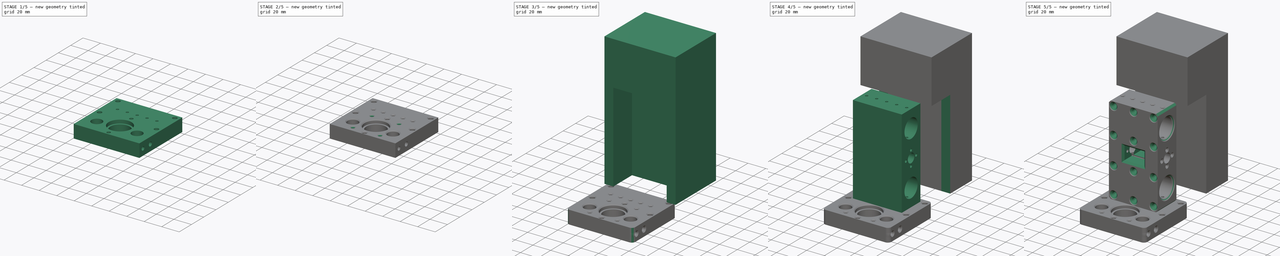
[diagram: build sequence overview — one tinted view per stage of 5, left to right]
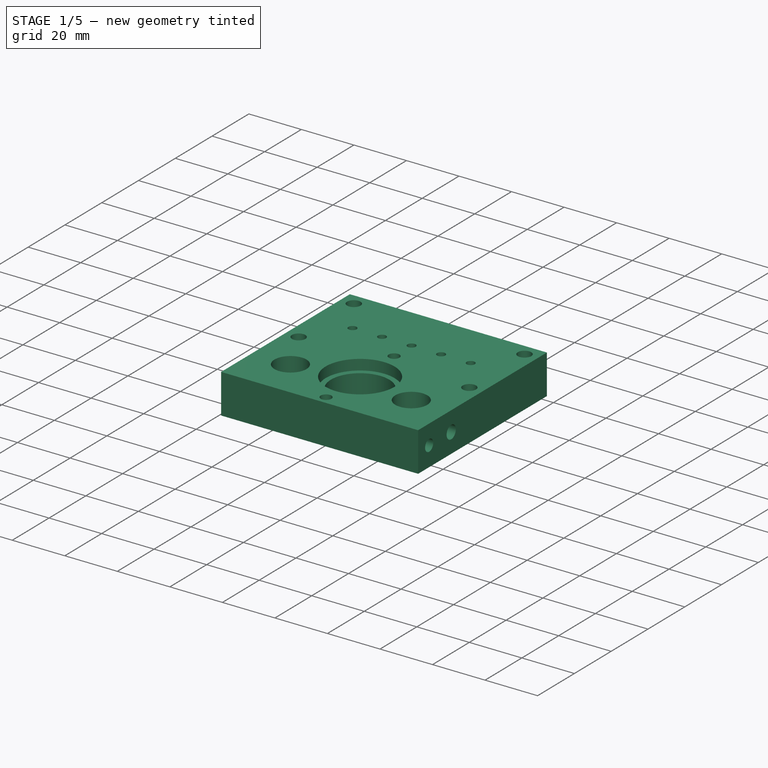
[diagram: stage 1 of 5 — iso view after this stage's code; geometry added in this stage tinted green]
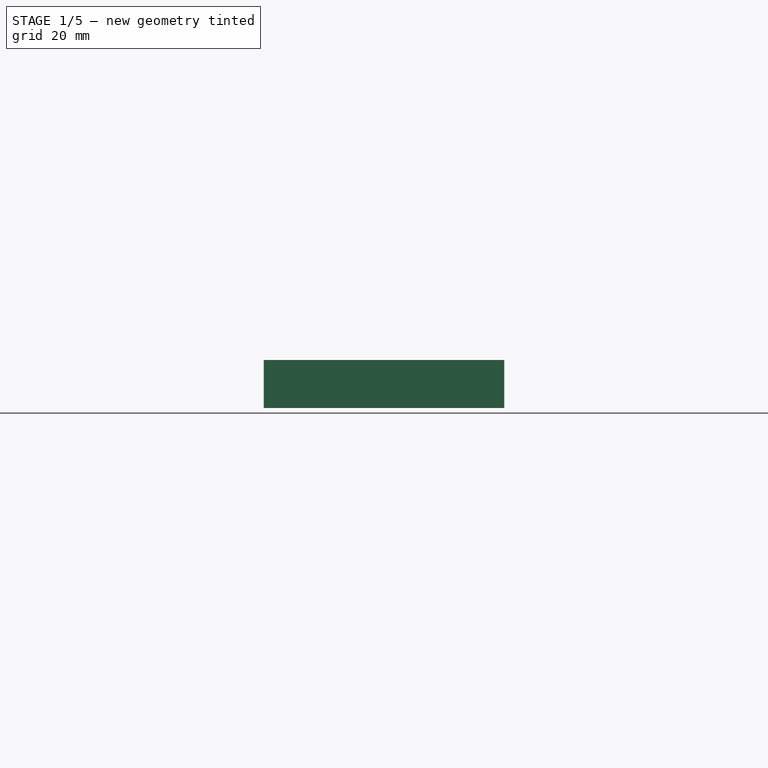
[diagram: stage 1 of 5 — front view after this stage's code; geometry added in this stage tinted green]
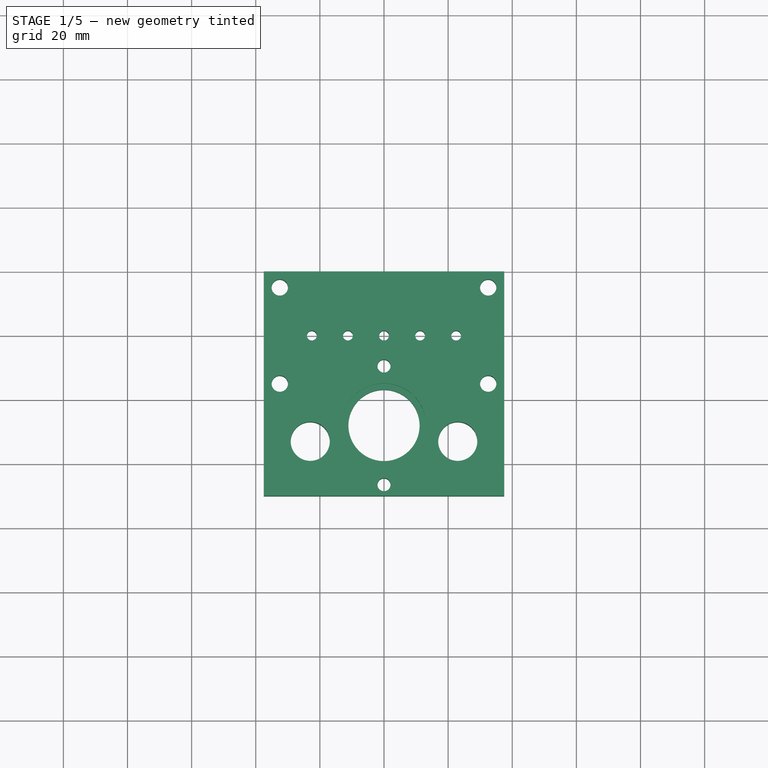
[diagram: stage 1 of 5 — top view after this stage's code; geometry added in this stage tinted green]
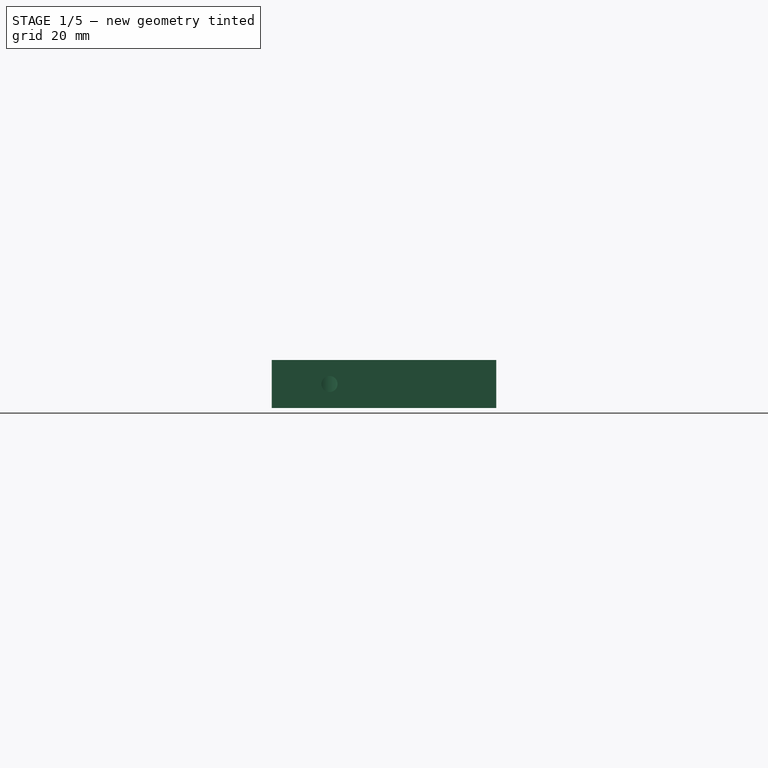
[diagram: stage 1 of 5 — right view after this stage's code; geometry added in this stage tinted green]
FCSTD DOCUMENT  (FreeCAD 0.19R)
Label: x_carriage
License: All rights reserved
LicenseURL: http://en.wikipedia.org/wiki/All_rights_reserved
objects: Sketcher::SketchObject×12, PartDesign::Pocket×8, PartDesign::Chamfer×6, PartDesign::Pad×3, PartDesign::Body×3, PartDesign::ShapeBinder×2, PartDesign::Fillet×1
note: 53 computed .brp shape members not serialized (recipe doc carries the construction recipe); baked Part::Feature solids carry a one-line shape summary decoded from their .brp

FEATURE [Sketcher::SketchObject] Sketch006
  ExternalGeometry = -> [Pocket003]
  FullyConstrained = false
  MapMode = 5
  Placement = pos=(5.5e-15,-4.45e-14,-50) rot=(0.707107,0.707107,0;3.14159rad)
  Support = -> [Pocket003]
  sketch-geometry (3):
    g0: Circle CenterX=68 CenterY=22.5381 CenterZ=0 NormalX=0 NormalY=0 NormalZ=1 AngleXU=0 Radius=6.1
    g1: Circle CenterX=68 CenterY=-22.5381 CenterZ=0 NormalX=0 NormalY=0 NormalZ=1 AngleXU=0 Radius=6.1
    g2: Circle CenterX=59.8159 CenterY=0 CenterZ=0 NormalX=0 NormalY=0 NormalZ=1 AngleXU=0 Radius=11.1
  constraints (6):
    c: PointOnObject(g2,g-1)
    c: Symmetric(g0,g1,g-1)
    c: DistanceX(g-3,g0) = 23
    c: Diameter(g0) = 12.2
    c: Equal(g0,g1)
    c: Diameter(g2) = 22.2
FEATURE [PartDesign::Body] Body001  label="z_axis_holder"
  Group = -> [CopyChamfer002,Sketch003,Pad001,Sketch004,Pocket002,Sketch005,Pocket003,Sketch006]
  Origin = -> Origin001
  Tip = -> Pocket003
FEATURE [PartDesign::ShapeBinder] CopyChamfer002001
  Placement = pos=(0,0,0) rot=(0.57735,0.57735,0.57735;2.0944rad)
  TraceSupport = false
FEATURE [Sketcher::SketchObject] Sketch007
  FullyConstrained = true
  MapMode = 5
  Placement = pos=(1.4e-14,-2.2e-14,-50) rot=(0.707107,0.707107,0;3.14159rad)
  Support = -> [CopyChamfer002001]
  sketch-geometry (18):
    g0: LineSegment StartX=-50 StartY=37.5 StartZ=0 EndX=20 EndY=37.5 EndZ=0
    g1: LineSegment StartX=20 StartY=37.5 StartZ=0 EndX=20 EndY=-37.5 EndZ=0
    g2: LineSegment StartX=20 StartY=-37.5 StartZ=0 EndX=-50 EndY=-37.5 EndZ=0
    g3: LineSegment StartX=-50 StartY=-37.5 StartZ=0 EndX=-50 EndY=37.5 EndZ=0
    g4: Circle CenterX=-33 CenterY=23 CenterZ=0 NormalX=0 NormalY=0 NormalZ=1 AngleXU=0 Radius=6.1
    g5: Circle CenterX=-33 CenterY=-23 CenterZ=0 NormalX=0 NormalY=0 NormalZ=1 AngleXU=0 Radius=6.1
    g6: Circle CenterX=-28 CenterY=0 CenterZ=0 NormalX=0 NormalY=0 NormalZ=1 AngleXU=0 Radius=11.1
    g7: Circle CenterX=-46.5 CenterY=0 CenterZ=0 NormalX=0 NormalY=0 NormalZ=1 AngleXU=0 Radius=2.05
    g8: Circle CenterX=-9.5 CenterY=0 CenterZ=0 NormalX=0 NormalY=0 NormalZ=1 AngleXU=0 Radius=2.05
    g9: Circle CenterX=0 CenterY=22.5 CenterZ=0 NormalX=0 NormalY=0 NormalZ=1 AngleXU=0 Radius=1.55
    g10: Circle CenterX=0 CenterY=11.25 CenterZ=0 NormalX=0 NormalY=0 NormalZ=1 AngleXU=0 Radius=1.55
    g11: Circle CenterX=0 CenterY=0 CenterZ=0 NormalX=0 NormalY=0 NormalZ=1 AngleXU=0 Radius=1.55
    g12: Circle CenterX=0 CenterY=-11.25 CenterZ=0 NormalX=0 NormalY=0 NormalZ=1 AngleXU=0 Radius=1.55
    g13: Circle CenterX=0 CenterY=-22.5 CenterZ=0 NormalX=0 NormalY=0 NormalZ=1 AngleXU=0 Radius=1.55
    g14: Circle CenterX=-15 CenterY=32.5 CenterZ=0 NormalX=0 NormalY=0 NormalZ=1 AngleXU=0 Radius=2.55
    g15: Circle CenterX=-15 CenterY=-32.5 CenterZ=0 NormalX=0 NormalY=0 NormalZ=1 AngleXU=0 Radius=2.55
    g16: Circle CenterX=15 CenterY=-32.5 CenterZ=0 NormalX=0 NormalY=0 NormalZ=1 AngleXU=0 Radius=2.55
    g17: Circle CenterX=15 CenterY=32.5 CenterZ=0 NormalX=0 NormalY=0 NormalZ=1 AngleXU=0 Radius=2.55
  constraints (42):
    c: Coincident(g0,g1)
    c: Coincident(g1,g2)
    c: Coincident(g2,g3)
    c: Coincident(g3,g0)
    c: Horizontal(g0)
    c: Horizontal(g2)
    c: Vertical(g1)
    c: Symmetric(g0,g2,g-1)
    c: DistanceX(g2,g-1) = 50
    c: Distance(g3) = 75
    c: Distance(g0) = 70
    c: PointOnObject(g6,g-1)
    c: Diameter(g4) = 12.2
    c: Equal(g4,g5)
    c: Diameter(g6) = 22.2
    c: Symmetric(g4,g5,g-1)
    c: Distance(g4,g5) = 46
    c: DistanceX(g5,g6) = 5
    c: PointOnObject(g7,g-1)
    c: Diameter(g7) = 4.1
    c: Equal(g7,g8)
    c: Distance(g7,g8) = 37
    c: Symmetric(g7,g8,g6)
    c: DistanceX(g6,g-1) = 28
    c: Diameter(g9) = 3.1
    c: Equal(g9, g10-g13) x4
    c: Symmetric(g9,g13,g-1)
    c: Symmetric(g10,g12,g-1)
    c: Distance(g12,g10) = 22.5
    c: Distance(g13,g9) = 45
    c: DistanceX(g11,g9) = 0
    c: DistanceX(g10,g11) = 0
    c: Coincident(g11,g-1)
    c: Diameter(g14) = 5.1
    c: Equal(g14,g17)
    c: Equal(g14,g16)
    c: Equal(g14,g15)
    c: Symmetric(g14,g17,g-2)
    c: Symmetric(g16,g15,g-2)
    c: Symmetric(g17,g16,g-1)
    c: Distance(g17,g14) = 30
    c: Distance(g17,g16) = 65
FEATURE [PartDesign::Pad] Pad002
  Direction = (1,1,1)
  Length = 15
  Length2 = 100
  Placement = pos=(0,0,0) rot=(0.57735,0.57735,0.57735;2.0944rad)
  Profile = -> Sketch007
  Type = 0
FEATURE [Sketcher::SketchObject] Sketch008
  ExternalGeometry = -> [Pad002]
  FullyConstrained = true
  MapMode = 5
  Placement = pos=(1.85e-14,-4.02e-14,-65) rot=(0.707107,0.707107,0;3.14159rad)
  Support = -> [Pad002]
  sketch-geometry (1):
    g0: Circle CenterX=-28 CenterY=-1.4e-15 CenterZ=0 NormalX=0 NormalY=0 NormalZ=1 AngleXU=0 Radius=13.1
  constraints (2):
    c: Coincident(g0,g-3)
    c: Diameter(g0) = 26.2
FEATURE [PartDesign::Pocket] Pocket004
  BaseFeature = -> Pad002
  Length = 4
  Length2 = 100
  Placement = pos=(0,0,0) rot=(0.57735,0.57735,0.57735;2.0944rad)
  Profile = -> Sketch008
  Type = 0
FEATURE [Sketcher::SketchObject] Sketch009
  ExternalGeometry = -> [Pocket004]
  FullyConstrained = true
  MapMode = 5
  Placement = pos=(1.42e-14,-3.65e-14,-50) rot=(0,0,-1;1.5708rad)
  Support = -> [Pocket004]
  sketch-geometry (1):
    g0: Circle CenterX=28 CenterY=-1.73e-14 CenterZ=0 NormalX=0 NormalY=0 NormalZ=1 AngleXU=0 Radius=13.1
  constraints (2):
    c: Coincident(g0,g-3)
    c: Diameter(g0) = 26.2
FEATURE [PartDesign::Pocket] Pocket005
  BaseFeature = -> Pocket004
  Length = 4
  Length2 = 100
  Placement = pos=(0,0,0) rot=(0.57735,0.57735,0.57735;2.0944rad)
  Profile = -> Sketch009
  Type = 0
FEATURE [Sketcher::SketchObject] Sketch010
  ExternalGeometry = -> [Pocket005]
  FullyConstrained = false
  MapMode = 5
  Placement = pos=(37.5,-1.25e-14,1.88e-14) rot=(0.57735,0.57735,0.57735;2.0944rad)
  Support = -> [Pocket005]
  sketch-geometry (3):
    g0: Circle CenterX=-44 CenterY=-57.5 CenterZ=0 NormalX=0 NormalY=0 NormalZ=1 AngleXU=0 Radius=2.20158
    g1: Circle CenterX=-32 CenterY=-57.5 CenterZ=0 NormalX=0 NormalY=0 NormalZ=1 AngleXU=0 Radius=2.51272
    g2: LineSegment StartX=-42.2054 StartY=-57.5 StartZ=0 EndX=0 EndY=-57.5 EndZ=0
  constraints (7):
    c: PointOnObject(g2,g-2)
    c: Horizontal(g2)
    c: PointOnObject(g0,g2)
    c: PointOnObject(g1,g2)
    c: Distance(g0,g1) = 12
    c: DistanceY(g0,g-3) = 7.5
    c: DistanceX(g1,g-1) = 32
FEATURE [PartDesign::Pocket] Pocket006
  BaseFeature = -> Pocket005
  Length = 10
  Length2 = 100
  Placement = pos=(0,0,0) rot=(0.57735,0.57735,0.57735;2.0944rad)
  Profile = -> Sketch010
  Type = 0
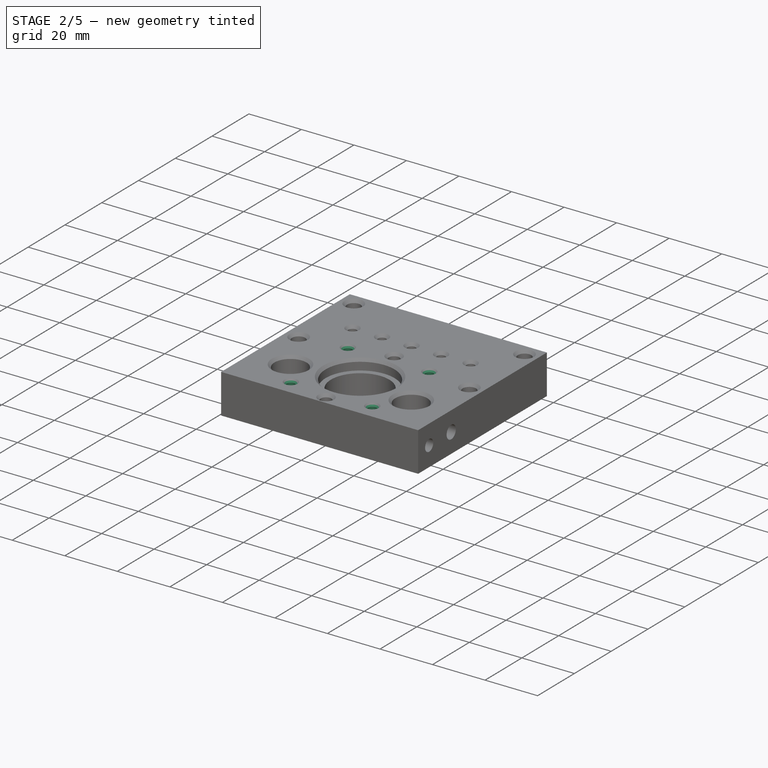
[diagram: stage 2 of 5 — iso view after this stage's code; geometry added in this stage tinted green]
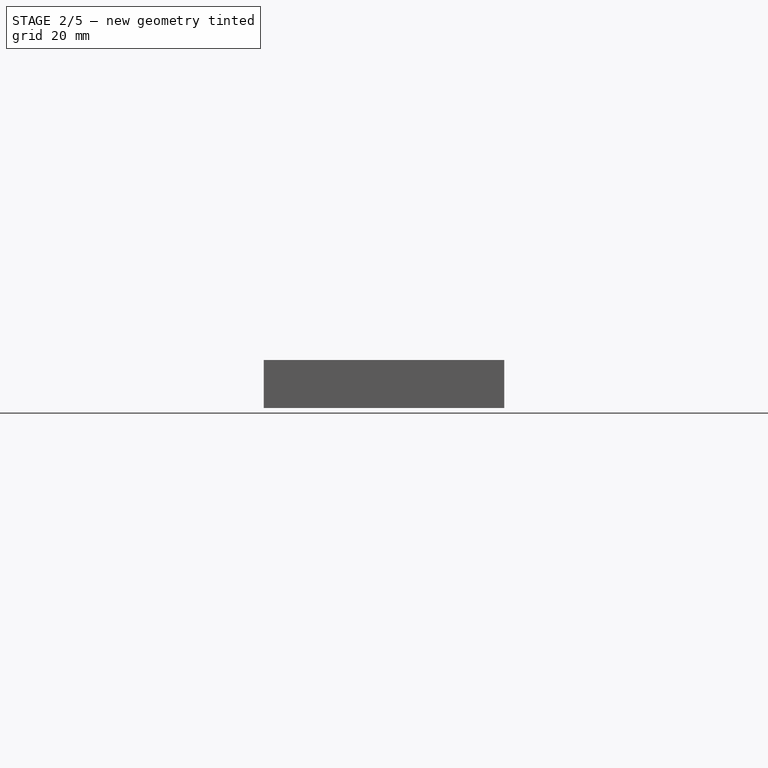
[diagram: stage 2 of 5 — front view after this stage's code; geometry added in this stage tinted green]
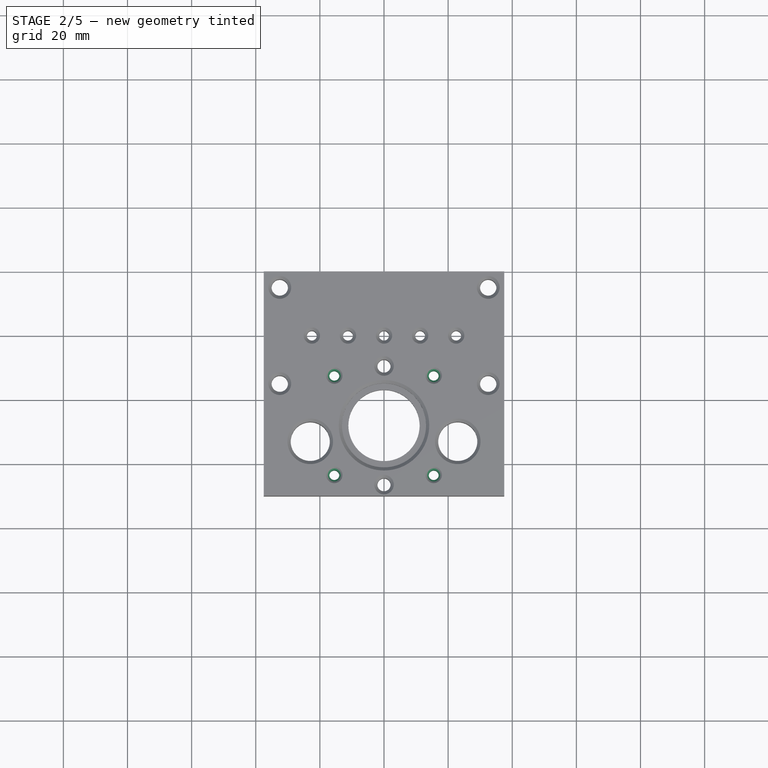
[diagram: stage 2 of 5 — top view after this stage's code; geometry added in this stage tinted green]
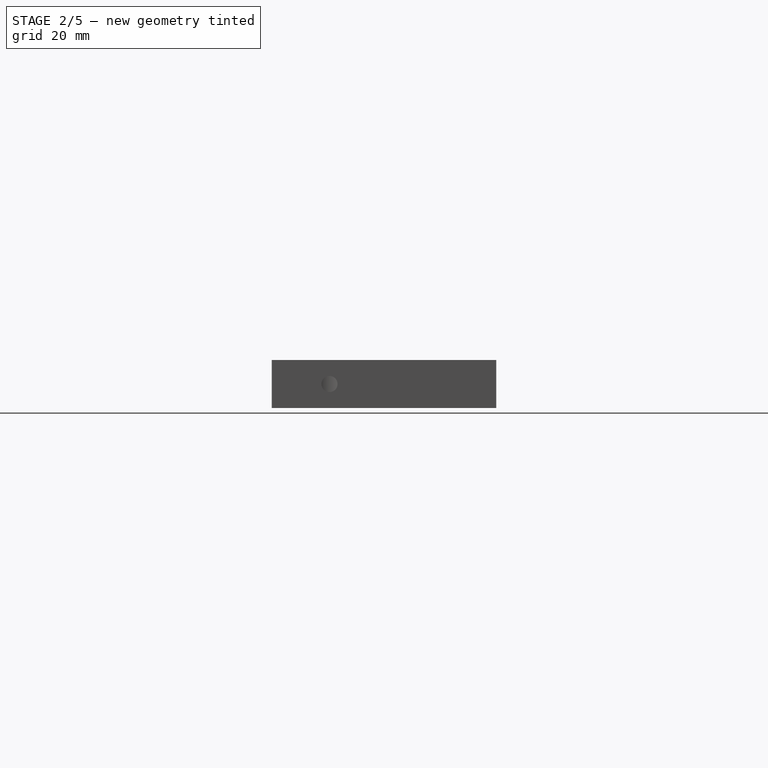
[diagram: stage 2 of 5 — right view after this stage's code; geometry added in this stage tinted green]
FEATURE [Sketcher::SketchObject] Sketch011
  ExternalGeometry = -> [Pocket006]
  FullyConstrained = true
  MapMode = 5
  Placement = pos=(1.85e-14,-6.19e-14,-65) rot=(0.707107,0.707107,0;3.14159rad)
  Support = -> [Pocket006]
  sketch-geometry (9):
    g0: LineSegment StartX=-43.5 StartY=-15.5 StartZ=0 EndX=-12.5 EndY=-15.5 EndZ=0
    g1: LineSegment StartX=-12.5 StartY=-15.5 StartZ=0 EndX=-12.5 EndY=15.5 EndZ=0
    g2: LineSegment StartX=-12.5 StartY=15.5 StartZ=0 EndX=-43.5 EndY=15.5 EndZ=0
    g3: LineSegment StartX=-43.5 StartY=15.5 StartZ=0 EndX=-43.5 EndY=-15.5 EndZ=0
    g4: Circle CenterX=-28 CenterY=-1.15e-14 CenterZ=0 NormalX=0 NormalY=0 NormalZ=1 AngleXU=0 Radius=21.9203
    g5: Circle CenterX=-12.5 CenterY=-15.5 CenterZ=0 NormalX=0 NormalY=0 NormalZ=1 AngleXU=0 Radius=1.55
    g6: Circle CenterX=-12.5 CenterY=15.5 CenterZ=0 NormalX=0 NormalY=0 NormalZ=1 AngleXU=0 Radius=1.55
    g7: Circle CenterX=-43.5 CenterY=15.5 CenterZ=0 NormalX=0 NormalY=0 NormalZ=1 AngleXU=0 Radius=1.55
    g8: Circle CenterX=-43.5 CenterY=-15.5 CenterZ=0 NormalX=0 NormalY=0 NormalZ=1 AngleXU=0 Radius=1.55
  constraints (22):
    c: Coincident(g0,g1)
    c: Coincident(g1,g2)
    c: Coincident(g2,g3)
    c: Coincident(g3,g0)
    c: Equal(g0,g1)
    c: Equal(g0,g2)
    c: Equal(g0,g3)
    c: PointOnObject(g0,g4)
    c: PointOnObject(g1,g4)
    c: PointOnObject(g2,g4)
    c: PointOnObject(g3,g4)
    c: Coincident(g4,g-3)
    c: Distance(g1) = 31
    c: Perpendicular(g-2,g2)
    c: Coincident(g5,g0)
    c: Coincident(g6,g1)
    c: Coincident(g7,g2)
    c: Coincident(g8,g0)
    c: Diameter(g5) = 3.1
    c: Equal(g5,g8)
    c: Equal(g5,g7)
    c: Equal(g5,g6)
FEATURE [PartDesign::Pocket] Pocket007
  BaseFeature = -> Pocket006
  Length = 5
  Length2 = 100
  Placement = pos=(0,0,0) rot=(0.57735,0.57735,0.57735;2.0944rad)
  Profile = -> Sketch011
  Type = 1
FEATURE [PartDesign::Chamfer] Chamfer003
  Angle = 45
  Base = -> Pocket007 [Edge42,Edge32,Edge41,Edge34,Edge48,Edge49,Edge36,Edge35,Edge38,Edge44,Edge46,Edge47,Edge45,Edge37,Edge33,Edge39,Edge40,Edge43]
  BaseFeature = -> Pocket007
  ChamferType = 0
  FlipDirection = false
  Placement = pos=(0,0,0) rot=(0.57735,0.57735,0.57735;2.0944rad)
  Size = 1
  Size2 = 1
  SupportTransform = false
FEATURE [PartDesign::Chamfer] Chamfer004
  Angle = 45
  Base = -> Chamfer003 [Edge70,Edge79,Edge78,Edge72,Edge71,Edge80,Edge73,Edge76,Edge36,Edge82,Edge85,Edge84,Edge83,Edge81,Edge77,Edge74,Edge75,Edge86,Edge87]
  BaseFeature = -> Chamfer003
  ChamferType = 0
  FlipDirection = false
  Placement = pos=(0,0,0) rot=(0.57735,0.57735,0.57735;2.0944rad)
  Size = 1
  Size2 = 1
  SupportTransform = false
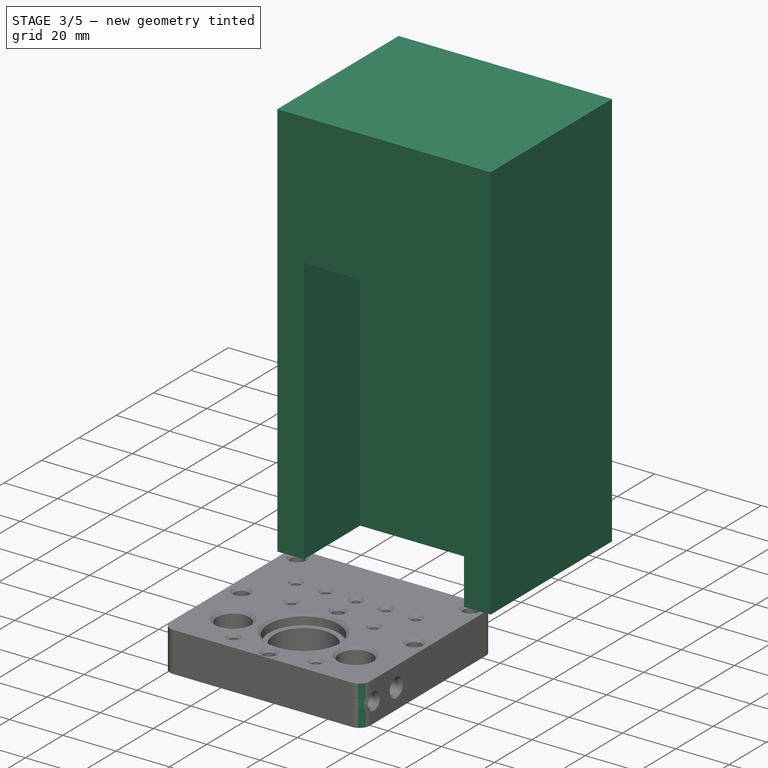
[diagram: stage 3 of 5 — iso view after this stage's code; geometry added in this stage tinted green]
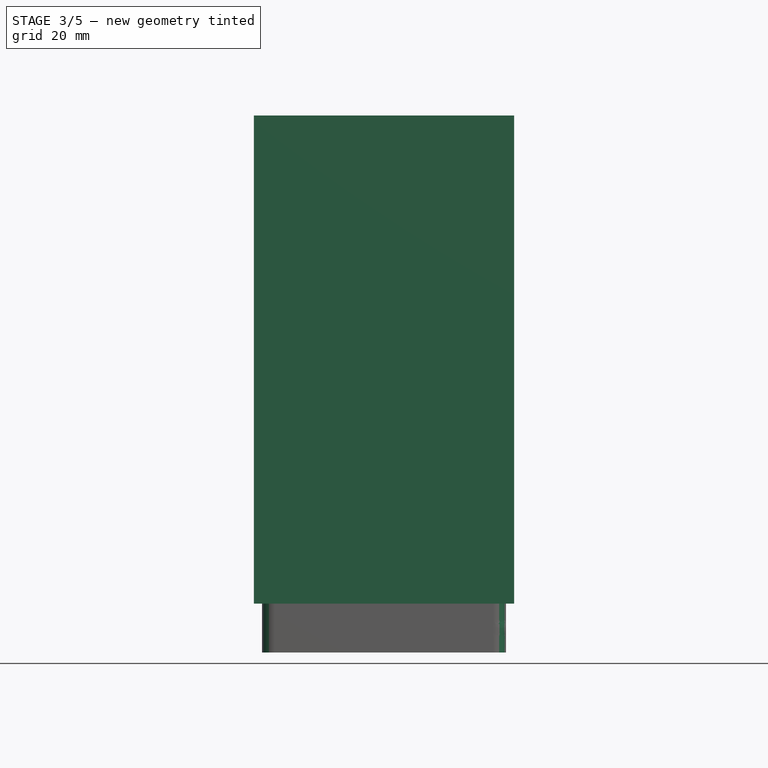
[diagram: stage 3 of 5 — front view after this stage's code; geometry added in this stage tinted green]
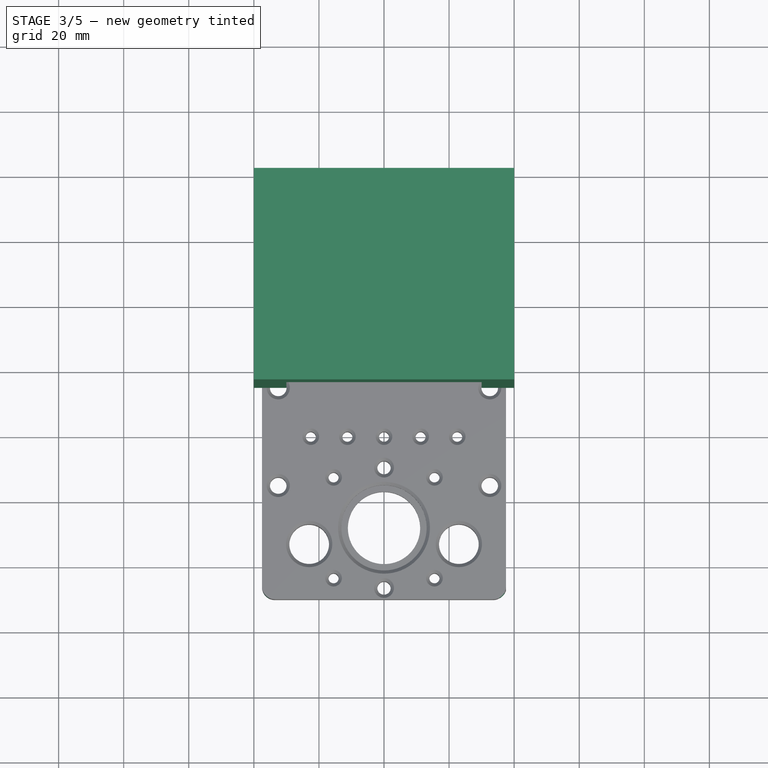
[diagram: stage 3 of 5 — top view after this stage's code; geometry added in this stage tinted green]
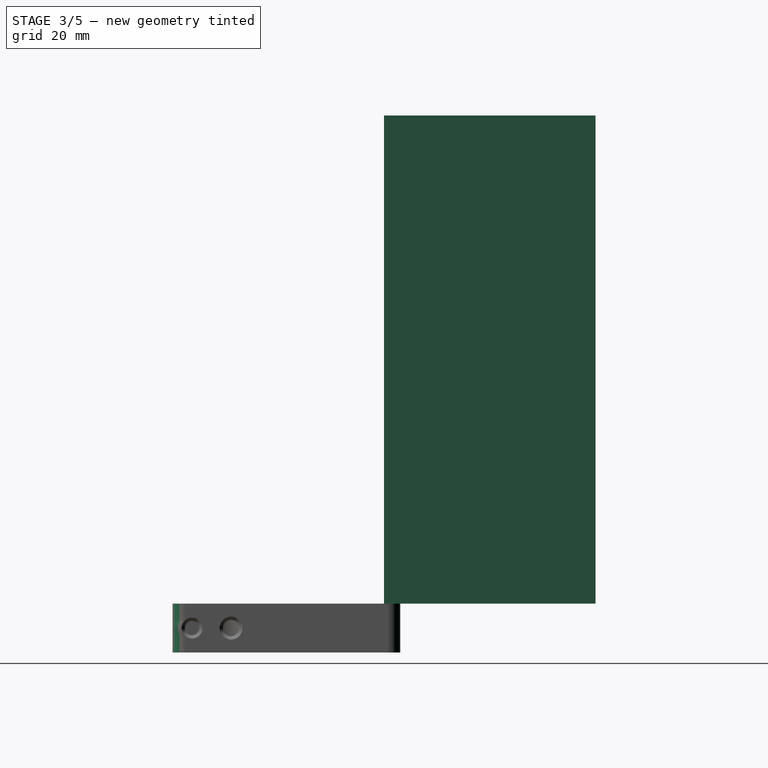
[diagram: stage 3 of 5 — right view after this stage's code; geometry added in this stage tinted green]
FEATURE [PartDesign::Body] Body  label="x_cariage"
  Group = -> [Sketch,Pad,Sketch001,Pocket,Sketch002,Pocket001,Chamfer,Chamfer001,Chamfer002]
  Origin = -> Origin
  Tip = -> Chamfer002
FEATURE [PartDesign::ShapeBinder] CopyChamfer002
  Placement = pos=(0,0,0) rot=(0.57735,0.57735,0.57735;2.0944rad)
  TraceSupport = false
FEATURE [Sketcher::SketchObject] Sketch003
  FullyConstrained = true
  MapMode = 5
  Placement = pos=(6.6e-15,15,-3.3e-15) rot=(0.57735,0.57735,0.57735;4.18879rad)
  Support = -> [CopyChamfer002]
  sketch-geometry (4):
    g0: LineSegment StartX=-50 StartY=40 StartZ=0 EndX=100 EndY=40 EndZ=0
    g1: LineSegment StartX=100 StartY=40 StartZ=0 EndX=100 EndY=-40 EndZ=0
    g2: LineSegment StartX=100 StartY=-40 StartZ=0 EndX=-50 EndY=-40 EndZ=0
    g3: LineSegment StartX=-50 StartY=-40 StartZ=0 EndX=-50 EndY=40 EndZ=0
  constraints (11):
    c: Coincident(g0,g1)
    c: Coincident(g1,g2)
    c: Coincident(g2,g3)
    c: Coincident(g3,g0)
    c: Horizontal(g0)
    c: Horizontal(g2)
    c: Vertical(g1)
    c: Symmetric(g0,g2,g-1)
    c: DistanceX(g0,g-1) = 50
    c: Distance(g2,g0) = 80
    c: Distance(g2,g1) = 150
FEATURE [PartDesign::Pad] Pad001
  Direction = (1,1,1)
  Length = 65
  Length2 = 100
  Placement = pos=(0,0,0) rot=(0.57735,0.57735,0.57735;2.0944rad)
  Profile = -> Sketch003
  Type = 0
FEATURE [Sketcher::SketchObject] Sketch004
  FullyConstrained = true
  MapMode = 5
  Placement = pos=(6.6e-15,15,-1.33e-14) rot=(0.57735,0.57735,-0.57735;2.0944rad)
  Support = -> [Pad001]
  sketch-geometry (4):
    g0: LineSegment StartX=-50.5 StartY=30 StartZ=0 EndX=50 EndY=30 EndZ=0
    g1: LineSegment StartX=50 StartY=30 StartZ=0 EndX=50 EndY=-30 EndZ=0
    g2: LineSegment StartX=50 StartY=-30 StartZ=0 EndX=-50.5 EndY=-30 EndZ=0
    g3: LineSegment StartX=-50.5 StartY=-30 StartZ=0 EndX=-50.5 EndY=30 EndZ=0
  constraints (11):
    c: Coincident(g0,g1)
    c: Coincident(g1,g2)
    c: Coincident(g2,g3)
    c: Coincident(g3,g0)
    c: Horizontal(g0)
    c: Horizontal(g2)
    c: Vertical(g1)
    c: Symmetric(g0,g2,g-1)
    c: DistanceX(g-1,g0) = 50
    c: Distance(g0,g2) = 60
    c: Distance(g2,g1) = 100.5
FEATURE [PartDesign::Pocket] Pocket002
  BaseFeature = -> Pad001
  Length = 30
  Length2 = 100
  Placement = pos=(0,0,0) rot=(0.57735,0.57735,0.57735;2.0944rad)
  Profile = -> Sketch004
  Type = 0
FEATURE [PartDesign::Chamfer] Chamfer005
  Angle = 45
  Base = -> Chamfer004 [Edge36,Edge35]
  BaseFeature = -> Chamfer004
  ChamferType = 0
  FlipDirection = false
  Placement = pos=(0,0,0) rot=(0.57735,0.57735,0.57735;2.0944rad)
  Size = 1
  Size2 = 1
  SupportTransform = false
FEATURE [PartDesign::Fillet] Fillet
  Base = -> Chamfer005 [Edge5,Edge2,Edge52,Edge9]
  BaseFeature = -> Chamfer005
  Placement = pos=(0,0,0) rot=(0.57735,0.57735,0.57735;2.0944rad)
  Radius = 4
  SupportTransform = false
FEATURE [PartDesign::Body] Body002  label="z_axis_holder_2"
  Group = -> [CopyChamfer002001,Sketch007,Pad002,Sketch008,Pocket004,Sketch009,Pocket005,Sketch010,Pocket006,Sketch011,Pocket007,Chamfer003,Chamfer004,Chamfer005,Fillet]
  Origin = -> Origin002
  Tip = -> Fillet
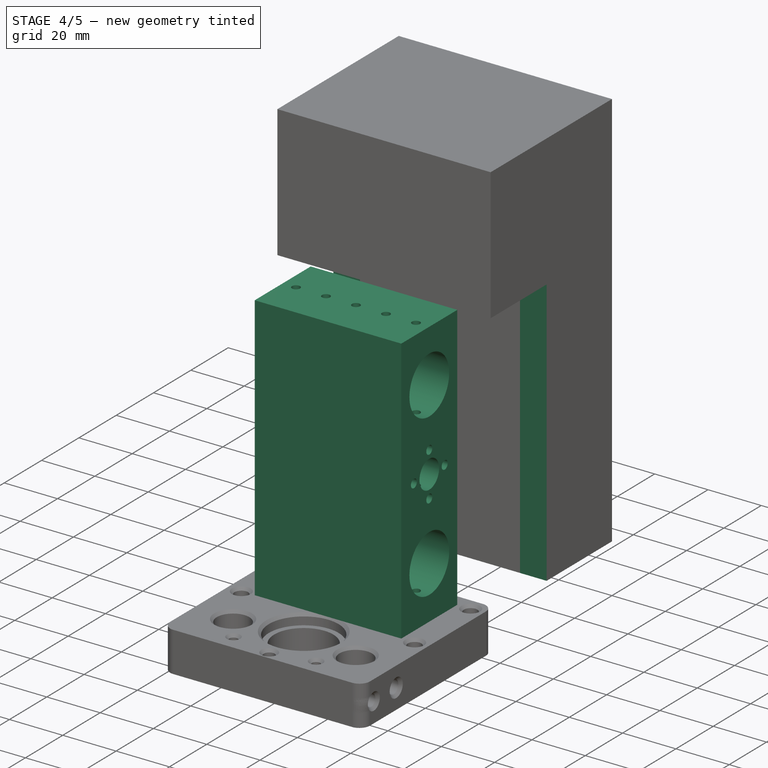
[diagram: stage 4 of 5 — iso view after this stage's code; geometry added in this stage tinted green]
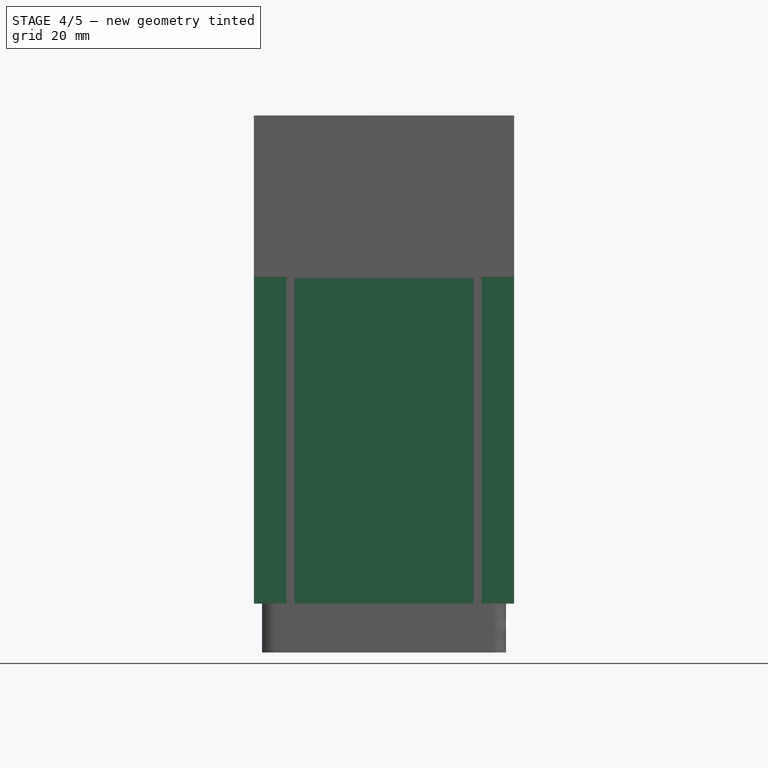
[diagram: stage 4 of 5 — front view after this stage's code; geometry added in this stage tinted green]
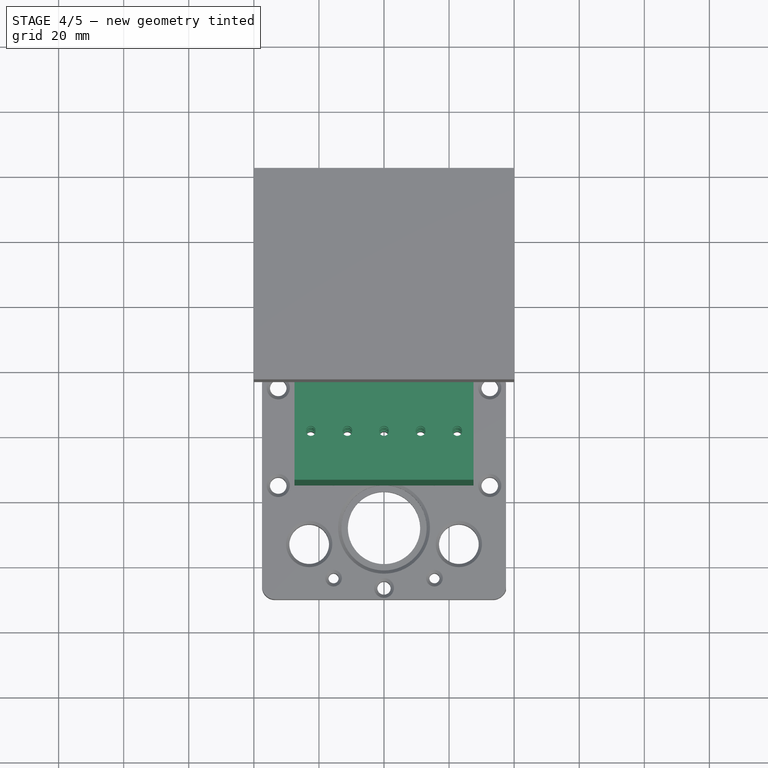
[diagram: stage 4 of 5 — top view after this stage's code; geometry added in this stage tinted green]
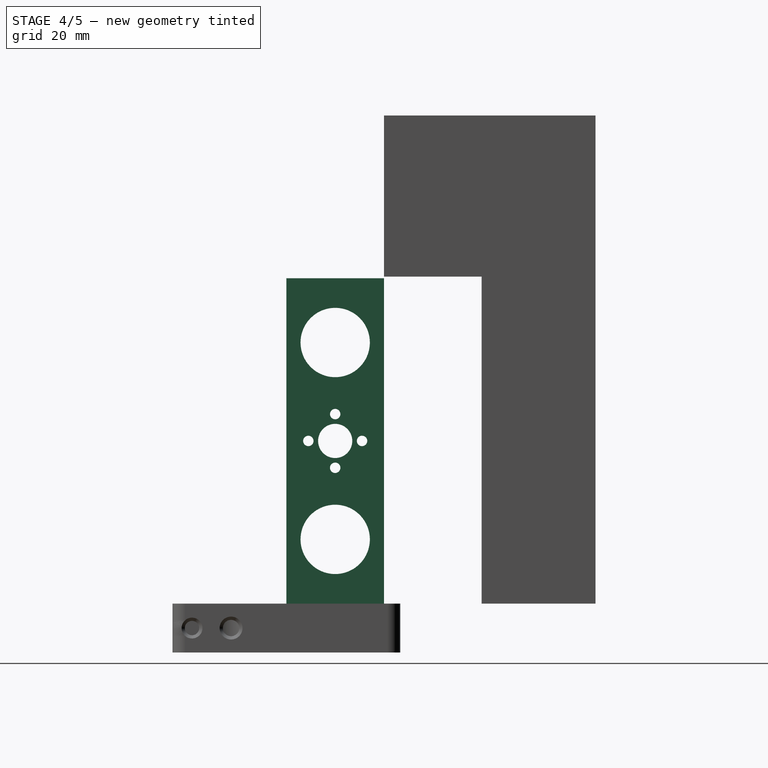
[diagram: stage 4 of 5 — right view after this stage's code; geometry added in this stage tinted green]
FEATURE [Sketcher::SketchObject] Sketch
  FullyConstrained = true
  MapMode = 5
  Placement = pos=(0,0,0) rot=(0.57735,0.57735,0.57735;2.0944rad)
  Support = -> [YZ_Plane]
  sketch-geometry (16):
    g0: Circle CenterX=0 CenterY=30.25 CenterZ=0 NormalX=0 NormalY=0 NormalZ=1 AngleXU=0 Radius=10.65
    g1: Circle CenterX=0 CenterY=-30.25 CenterZ=0 NormalX=0 NormalY=0 NormalZ=1 AngleXU=0 Radius=10.65
    g2: LineSegment StartX=8.25 StartY=0 StartZ=0 EndX=0 EndY=8.25 EndZ=0
    g3: LineSegment StartX=0 StartY=8.25 StartZ=0 EndX=-8.25 EndY=7.5264e-12 EndZ=0
    g4: LineSegment StartX=-8.25 StartY=7.5264e-12 StartZ=0 EndX=6.164e-13 EndY=-8.25 EndZ=0
    g5: LineSegment StartX=6.164e-13 StartY=-8.25 StartZ=0 EndX=8.25 EndY=0 EndZ=0
    g6: Circle CenterX=0 CenterY=0 CenterZ=0 NormalX=0 NormalY=0 NormalZ=1 AngleXU=0 Radius=8.25
    g7: Circle CenterX=0 CenterY=8.25 CenterZ=0 NormalX=0 NormalY=0 NormalZ=1 AngleXU=0 Radius=1.6
    g8: Circle CenterX=8.25 CenterY=0 CenterZ=0 NormalX=0 NormalY=0 NormalZ=1 AngleXU=0 Radius=1.6
    g9: Circle CenterX=6.164e-13 CenterY=-8.25 CenterZ=0 NormalX=0 NormalY=0 NormalZ=1 AngleXU=0 Radius=1.6
    g10: Circle CenterX=-8.25 CenterY=7.5264e-12 CenterZ=0 NormalX=0 NormalY=0 NormalZ=1 AngleXU=0 Radius=1.6
    g11: LineSegment StartX=-15 StartY=50 StartZ=0 EndX=15 EndY=50 EndZ=0
    g12: LineSegment StartX=15 StartY=50 StartZ=0 EndX=15 EndY=-50 EndZ=0
    g13: LineSegment StartX=15 StartY=-50 StartZ=0 EndX=-15 EndY=-50 EndZ=0
    g14: LineSegment StartX=-15 StartY=-50 StartZ=0 EndX=-15 EndY=50 EndZ=0
    g15: Circle CenterX=0 CenterY=0 CenterZ=0 NormalX=0 NormalY=0 NormalZ=1 AngleXU=0 Radius=5.25
  constraints (39):
    c: PointOnObject(g0,g-2)
    c: Distance(g0,g1) = 60.5
    c: Diameter(g0) = 21.3
    c: Equal(g0,g1)
    c: Symmetric(g0,g1,g-1)
    c: Coincident(g2,g3)
    c: Coincident(g3,g4)
    c: Coincident(g4,g5)
    c: Coincident(g5,g2)
    c: Equal(g2,g3)
    c: Equal(g2,g4)
    c: Equal(g2,g5)
    c: PointOnObject(g2,g6)
    c: PointOnObject(g3,g6)
    c: PointOnObject(g4,g6)
    c: PointOnObject(g5,g6)
    c: Coincident(g6,g-1)
    c: PointOnObject(g5,g-1)
    c: DistanceY(g4,g3) = 8.25
    c: Coincident(g7,g2)
    c: Coincident(g8,g2)
    c: Coincident(g9,g4)
    c: Coincident(g10,g3)
    c: Diameter(g8) = 3.2
    c: Equal(g8,g7)
    c: Equal(g8,g10)
    c: Equal(g8,g9)
    c: Coincident(g11,g12)
    c: Coincident(g12,g13)
    c: Coincident(g13,g14)
    c: Coincident(g14,g11)
    c: Horizontal(g13)
    c: Vertical(g12)
    c: Symmetric(g11,g11,g-2)
    c: Symmetric(g11,g13,g-1)
    c: Distance(g13) = 30
    c: Distance(g14) = 100
    c: Coincident(g15,g-1)
    c: Diameter(g15) = 10.5
FEATURE [PartDesign::Pad] Pad
  Direction = (1,1,1)
  Length = 27.5
  Length2 = 27.5
  Placement = pos=(0,0,0) rot=(0.57735,0.57735,0.57735;2.0944rad)
  Profile = -> Sketch
  Type = 4
FEATURE [Sketcher::SketchObject] Sketch001
  FullyConstrained = false
  MapMode = 5
  Placement = pos=(-1.4e-14,2.2e-14,50) rot=(0,0,-1;1.5708rad)
  Support = -> [Pad]
  sketch-geometry (5):
    g0: Circle CenterX=0 CenterY=22.5 CenterZ=0 NormalX=0 NormalY=0 NormalZ=1 AngleXU=0 Radius=1.5
    g1: Circle CenterX=0 CenterY=11.25 CenterZ=0 NormalX=0 NormalY=0 NormalZ=1 AngleXU=0 Radius=1.5
    g2: Circle CenterX=0 CenterY=-11.25 CenterZ=0 NormalX=0 NormalY=0 NormalZ=1 AngleXU=0 Radius=1.5
    g3: Circle CenterX=0 CenterY=-22.5 CenterZ=0 NormalX=0 NormalY=0 NormalZ=1 AngleXU=0 Radius=1.5
    g4: Circle CenterX=0 CenterY=0 CenterZ=0 NormalX=0 NormalY=0 NormalZ=1 AngleXU=0 Radius=1.5
  constraints (11):
    c: PointOnObject(g0,g-2)
    c: PointOnObject(g1,g-2)
    c: Diameter(g3) = 3
    c: Equal(g3,g4)
    c: Equal(g3,g2)
    c: Equal(g3,g1)
    c: Equal(g3,g0)
    c: Symmetric(g2,g1,g-1)
    c: Symmetric(g3,g0,g-1)
    c: DistanceY(g3,g0) = 45
    c: DistanceY(g2,g1) = 22.5
FEATURE [PartDesign::Pocket] Pocket
  BaseFeature = -> Pad
  Length = 5
  Length2 = 100
  Placement = pos=(0,0,0) rot=(0.57735,0.57735,0.57735;2.0944rad)
  Profile = -> Sketch001
  Type = 1
FEATURE [Sketcher::SketchObject] Sketch005
  FullyConstrained = true
  MapMode = 5
  Placement = pos=(40,-2.24e-14,0) rot=(0.57735,0.57735,0.57735;2.0944rad)
  Support = -> [Pocket002]
  sketch-geometry (4):
    g0: LineSegment StartX=15 StartY=50.5 StartZ=0 EndX=45 EndY=50.5 EndZ=0
    g1: LineSegment StartX=45 StartY=50.5 StartZ=0 EndX=45 EndY=-50 EndZ=0
    g2: LineSegment StartX=45 StartY=-50 StartZ=0 EndX=15 EndY=-50 EndZ=0
    g3: LineSegment StartX=15 StartY=-50 StartZ=0 EndX=15 EndY=50.5 EndZ=0
  constraints (12):
    c: Coincident(g0,g1)
    c: Coincident(g1,g2)
    c: Coincident(g2,g3)
    c: Coincident(g3,g0)
    c: Horizontal(g0)
    c: Horizontal(g2)
    c: Vertical(g1)
    c: Vertical(g3)
    c: DistanceX(g-1,g2) = 15
    c: Distance(g2) = 30
    c: DistanceY(g2,g-1) = 50
    c: Distance(g3) = 100.5
FEATURE [PartDesign::Pocket] Pocket003
  BaseFeature = -> Pocket002
  Length = 5
  Length2 = 100
  Placement = pos=(0,0,0) rot=(0.57735,0.57735,0.57735;2.0944rad)
  Profile = -> Sketch005
  Type = 1
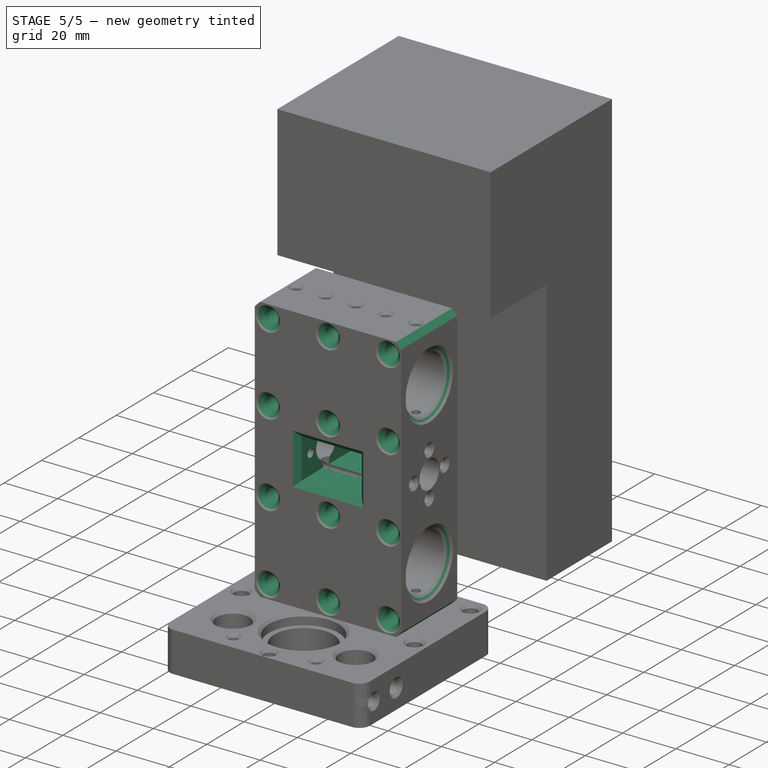
[diagram: stage 5 of 5 — iso view after this stage's code; geometry added in this stage tinted green]
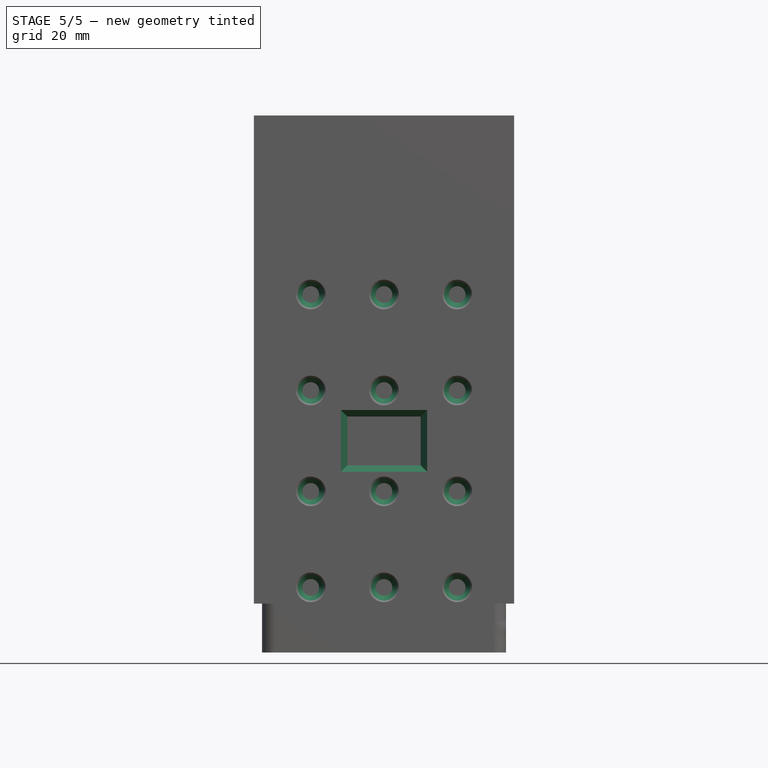
[diagram: stage 5 of 5 — front view after this stage's code; geometry added in this stage tinted green]
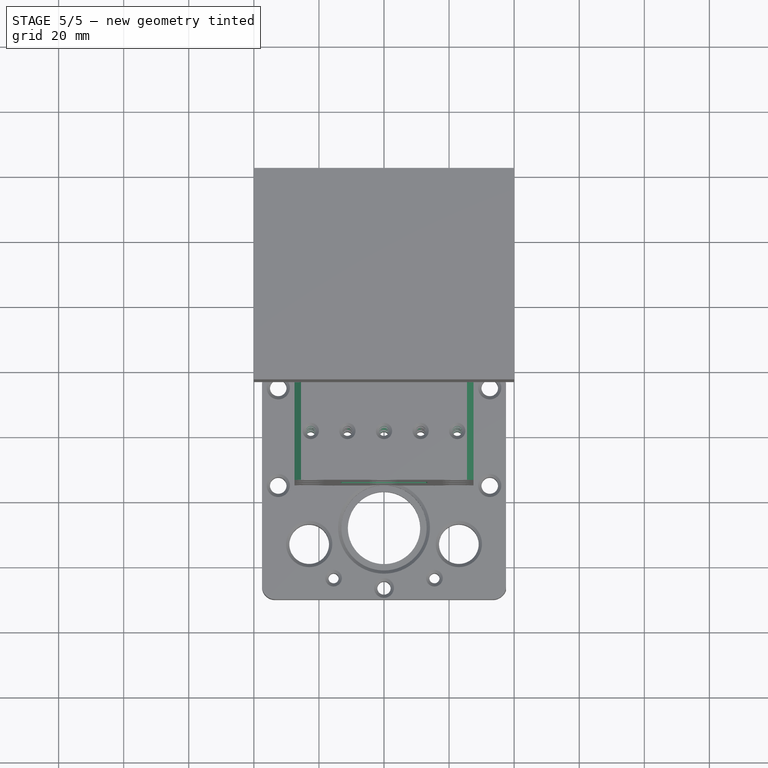
[diagram: stage 5 of 5 — top view after this stage's code; geometry added in this stage tinted green]
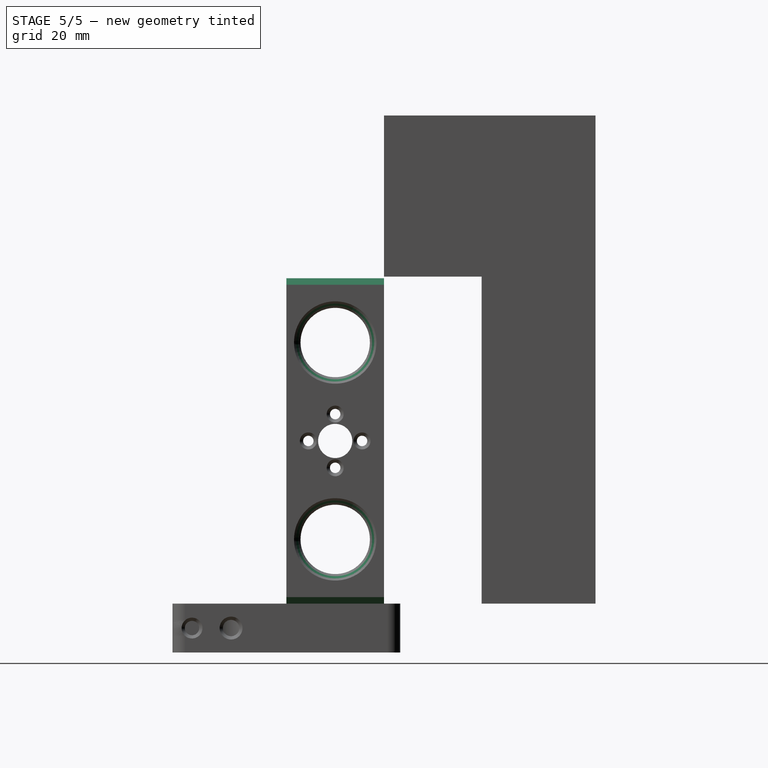
[diagram: stage 5 of 5 — right view after this stage's code; geometry added in this stage tinted green]
FEATURE [Sketcher::SketchObject] Sketch002
  FullyConstrained = false
  MapMode = 5
  Placement = pos=(8.3e-15,15,-3.3e-15) rot=(0.57735,0.57735,0.57735;4.18879rad)
  Support = -> [Pocket]
  sketch-geometry (17):
    g0: Circle CenterX=-45 CenterY=22.5 CenterZ=0 NormalX=0 NormalY=0 NormalZ=1 AngleXU=0 Radius=2.55
    g1: Circle CenterX=-45 CenterY=0 CenterZ=0 NormalX=0 NormalY=0 NormalZ=1 AngleXU=0 Radius=2.55
    g2: Circle CenterX=-45 CenterY=-22.5 CenterZ=0 NormalX=0 NormalY=0 NormalZ=1 AngleXU=0 Radius=2.55
    g3: Circle CenterX=-15.5 CenterY=22.5 CenterZ=0 NormalX=0 NormalY=0 NormalZ=1 AngleXU=0 Radius=2.55
    g4: Circle CenterX=-15.5 CenterY=0 CenterZ=0 NormalX=0 NormalY=0 NormalZ=1 AngleXU=0 Radius=2.55
    g5: Circle CenterX=-15.5 CenterY=-22.5 CenterZ=0 NormalX=0 NormalY=0 NormalZ=1 AngleXU=0 Radius=2.55
    g6: Circle CenterX=15.5 CenterY=-22.5 CenterZ=0 NormalX=0 NormalY=0 NormalZ=1 AngleXU=0 Radius=2.55
    g7: Circle CenterX=15.5 CenterY=0 CenterZ=0 NormalX=0 NormalY=0 NormalZ=1 AngleXU=0 Radius=2.55
    g8: Circle CenterX=15.5 CenterY=22.5 CenterZ=0 NormalX=0 NormalY=0 NormalZ=1 AngleXU=0 Radius=2.55
    g9: Circle CenterX=45 CenterY=22.5 CenterZ=0 NormalX=0 NormalY=0 NormalZ=1 AngleXU=0 Radius=2.55
    g10: Circle CenterX=45 CenterY=0 CenterZ=0 NormalX=0 NormalY=0 NormalZ=1 AngleXU=0 Radius=2.55
    g11: Circle CenterX=45 CenterY=-22.5 CenterZ=0 NormalX=0 NormalY=0 NormalZ=1 AngleXU=0 Radius=2.55
    g12: LineSegment StartX=-7.5 StartY=11.25 StartZ=0 EndX=7.5 EndY=11.25 EndZ=0
    g13: LineSegment StartX=7.5 StartY=11.25 StartZ=0 EndX=7.5 EndY=-11.25 EndZ=0
    g14: LineSegment StartX=7.5 StartY=-11.25 StartZ=0 EndX=-7.5 EndY=-11.25 EndZ=0
    g15: LineSegment StartX=-7.5 StartY=-11.25 StartZ=0 EndX=-7.5 EndY=11.25 EndZ=0
    g16: LineSegment StartX=-30.25 StartY=37.9208 StartZ=0 EndX=30.25 EndY=37.9208 EndZ=0
  constraints (40):
    c: PointOnObject(g1,g-1)
    c: PointOnObject(g4,g-1)
    c: Diameter(g0) = 5.1
    c: Equal(g0,g3)
    c: Equal(g0,g8)
    c: Equal(g0,g9)
    c: Equal(g0,g10)
    c: Equal(g0,g7)
    c: Equal(g0,g4)
    c: Equal(g0,g1)
    c: Equal(g0,g2)
    c: Equal(g0,g5)
    c: Equal(g0,g6)
    c: Equal(g0,g11)
    c: Symmetric(g9,g11,g-1)
    c: Symmetric(g6,g8,g-1)
    c: Symmetric(g5,g6,g-2)
    c: Symmetric(g2,g11,g-2)
    c: Symmetric(g1,g10,g-2)
    c: Symmetric(g4,g7,g-2)
    c: DistanceX(g2,g11) = 90
    c: DistanceY(g11,g9) = 45
    c: DistanceY(g5,g3) = 45
    c: Symmetric(g0,g2,g-1)
    c: Symmetric(g3,g5,g-1)
    c: Distance(g10,g1) = 90
    c: Coincident(g12,g13)
    c: Coincident(g13,g14)
    c: Coincident(g14,g15)
    c: Coincident(g15,g12)
    c: Horizontal(g14)
    c: Vertical(g15)
    c: Symmetric(g12,g12,g-2)
    c: Symmetric(g13,g12,g-1)
    c: Distance(g12) = 15
    c: Distance(g15) = 22.5
    c: Symmetric(g16,g16,g-2)
    c: Distance(g16,g16) = 60.5
    c: DistanceX(g8,g16) = 14.75
    c: DistanceX(g7,g16) = 14.75
FEATURE [PartDesign::Pocket] Pocket001
  BaseFeature = -> Pocket
  Length = 5
  Length2 = 100
  Placement = pos=(0,0,0) rot=(0.57735,0.57735,0.57735;2.0944rad)
  Profile = -> Sketch002
  Type = 1
FEATURE [PartDesign::Chamfer] Chamfer
  Angle = 45
  Base = -> Pocket001 [Edge3,Edge41,Edge40,Edge39,Edge17,Edge20,Edge19,Edge18,Edge2,Edge30,Edge56,Edge57,Edge55,Edge54,Edge32,Edge31]
  BaseFeature = -> Pocket001
  ChamferType = 0
  FlipDirection = false
  Placement = pos=(0,0,0) rot=(0.57735,0.57735,0.57735;2.0944rad)
  Size = 2
  Size2 = 1
  SupportTransform = false
FEATURE [PartDesign::Chamfer] Chamfer001
  Angle = 45
  Base = -> Chamfer [Edge22,Edge28,Edge20,Edge19,Edge21,Edge27,Edge26,Edge24,Edge18,Edge17,Edge23,Edge25,Edge42,Edge44,Edge48,Edge49,Edge45,Edge43,Edge46,Edge50,Edge52,Edge53,Edge51,Edge47]
  BaseFeature = -> Chamfer
  ChamferType = 0
  FlipDirection = false
  Placement = pos=(0,0,0) rot=(0.57735,0.57735,0.57735;2.0944rad)
  Size = 2
  Size2 = 1
  SupportTransform = false
FEATURE [PartDesign::Chamfer] Chamfer002
  Angle = 45
  Base = -> Chamfer001 [Edge33,Edge32,Edge34,Edge31,Edge30,Edge62,Edge63,Edge64,Edge65,Edge66,Edge43,Edge44,Edge45,Edge42,Edge54,Edge51,Edge52,Edge53]
  BaseFeature = -> Chamfer001
  ChamferType = 0
  FlipDirection = false
  Placement = pos=(0,0,0) rot=(0.57735,0.57735,0.57735;2.0944rad)
  Size = 1
  Size2 = 1
  SupportTransform = false
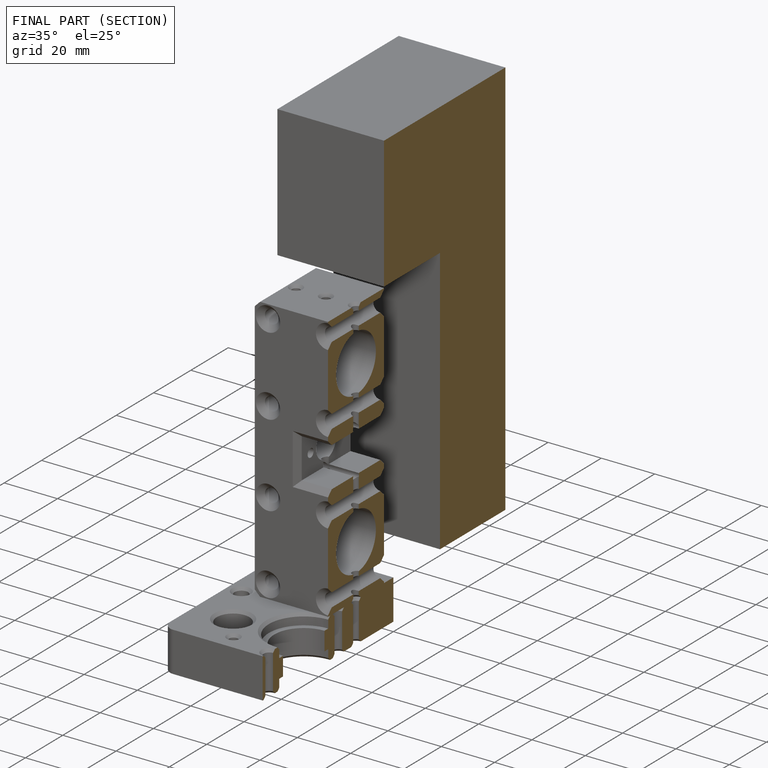
[diagram: finished part — half-section view (interior)]
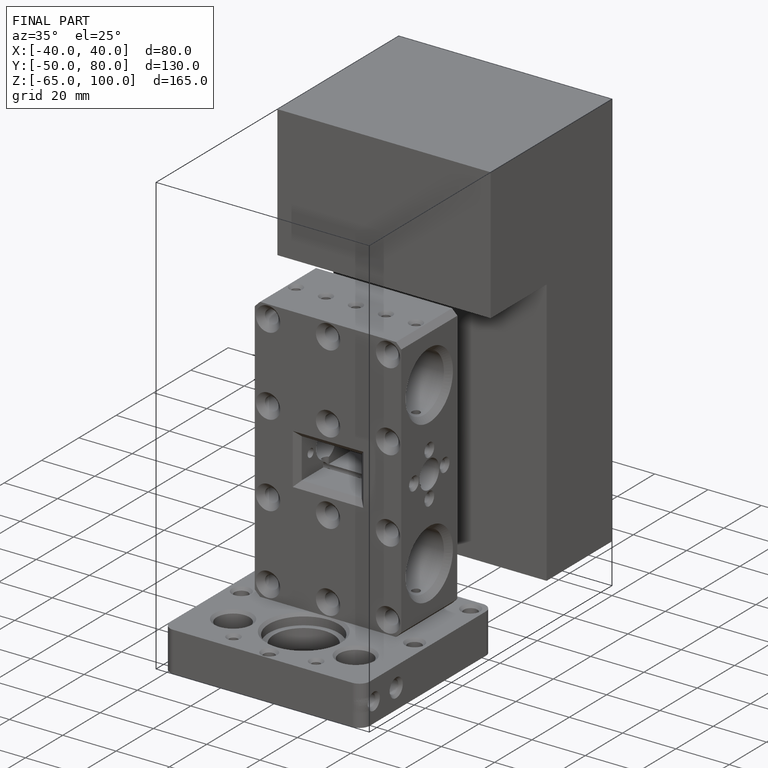
[diagram: finished part — iso view with bounding-box wireframe]
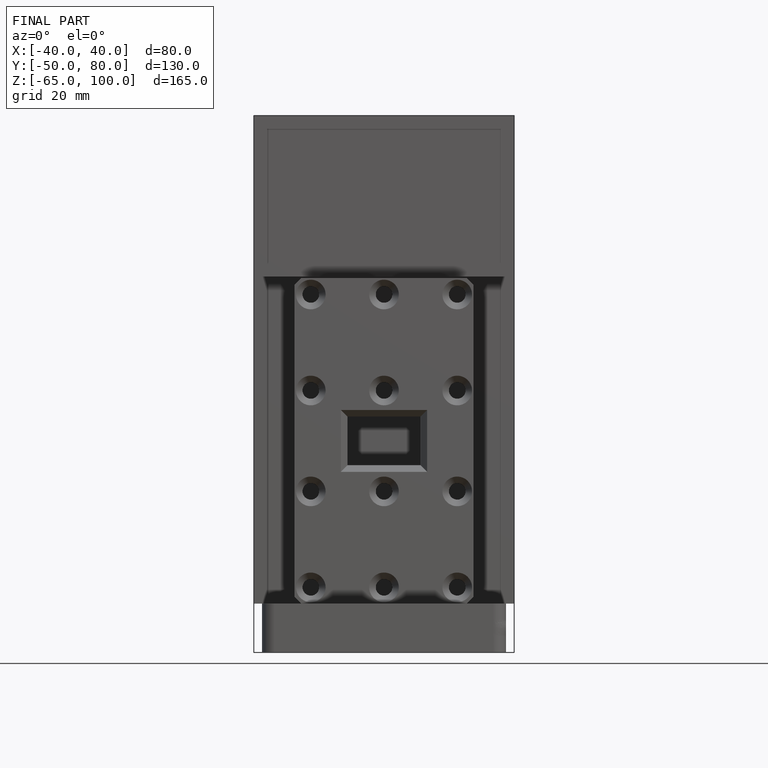
[diagram: finished part — front view with bounding-box wireframe]
